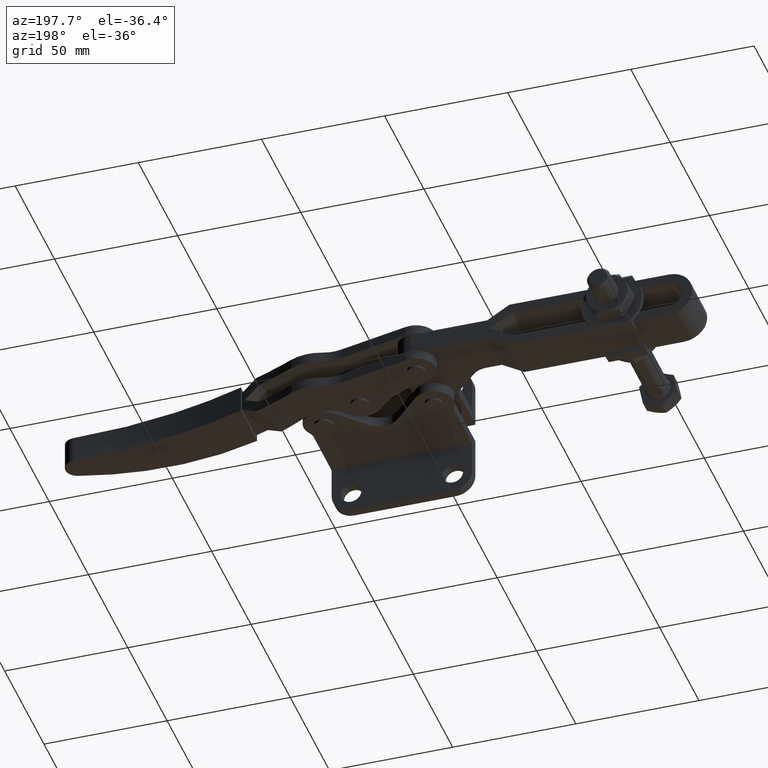
[diagram: clean part render]
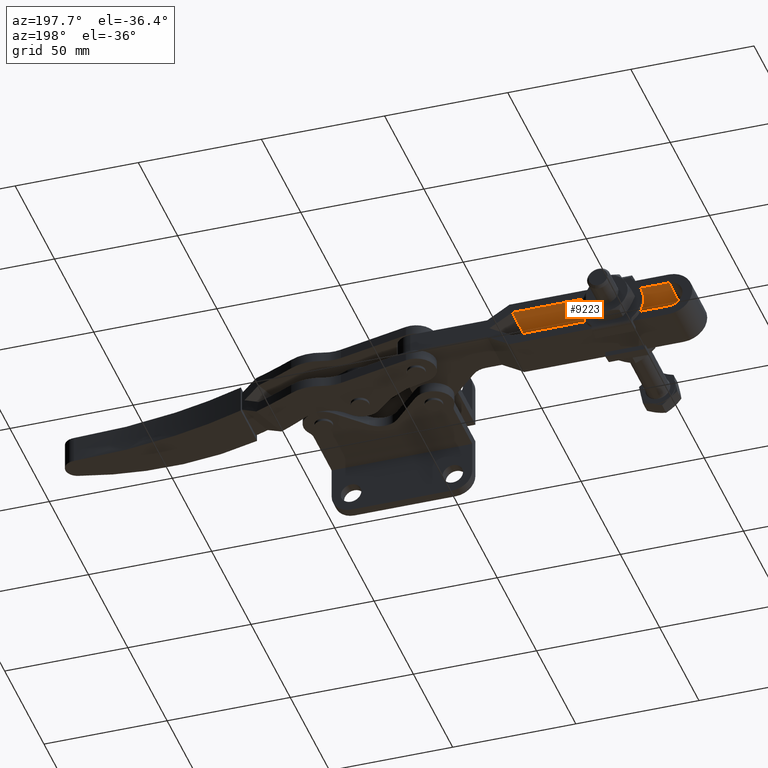
[diagram: same view with one face highlighted and labeled with its STEP entity id]
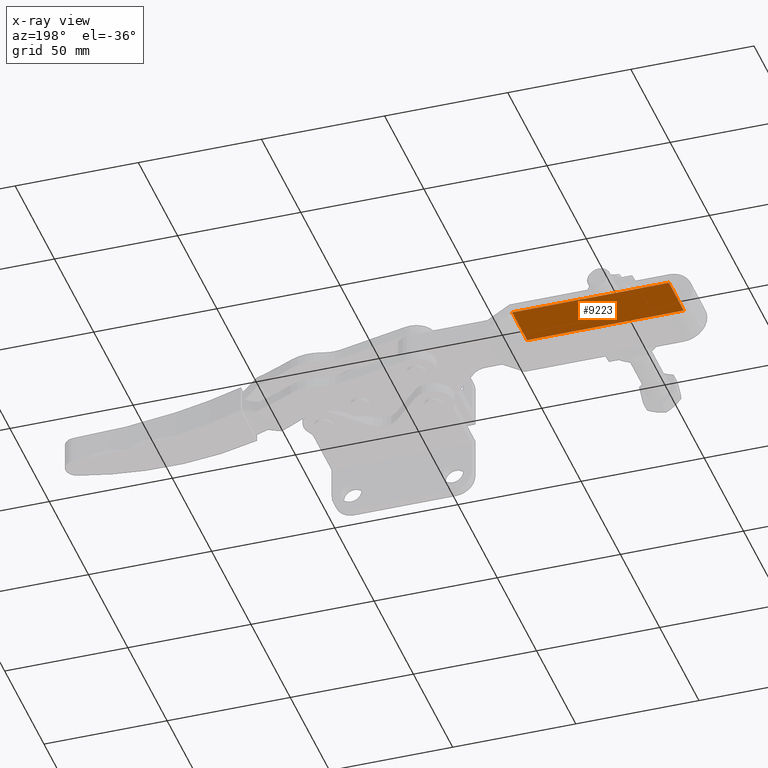
[diagram: x-ray of the same camera — body ghosted, the highlighted face saturated]
A machine part, auxiliary view. The second image highlights one B-rep face of the part: STEP entity #9223.
The next image is the same camera in x-ray: the body ghosted, the highlighted face saturated — about 0% of this face is hidden behind the body in this view.
In plain terms, the highlighted planar face has unit normal (0, 0, -1).
Its self-contained STEP definition (entity closure, byte-faithful):
#361 = VECTOR ( 'NONE', #3481, 1000.000000000000100 ) ;
#983 = CARTESIAN_POINT ( 'NONE',  ( -92.24993971434014400, 63.40008365123222900, 1.499999999996226600 ) ) ;
#1259 = CARTESIAN_POINT ( 'NONE',  ( -155.8999781513192300, 44.40021241559472300, 1.499999999993811800 ) ) ;
#1370 = CARTESIAN_POINT ( 'NONE',  ( -92.24997815145171400, 44.40008365127103200, 1.499999999996225700 ) ) ;
#1371 = VERTEX_POINT ( 'NONE', #1259 ) ;
#1411 = DIRECTION ( 'NONE',  ( 3.792184384588089500E-014, 2.488427435205167400E-017, -1.000000000000000000 ) ) ;
#1713 = ORIENTED_EDGE ( 'NONE', *, *, #6476, .T. ) ;
#1786 = ORIENTED_EDGE ( 'NONE', *, *, #9562, .F. ) ;
#2191 = ORIENTED_EDGE ( 'NONE', *, *, #6121, .F. ) ;
#2285 = EDGE_CURVE ( 'NONE', #1371, #5630, #4642, .T. ) ;
#3127 = DIRECTION ( 'NONE',  ( 2.023005871480253500E-006, 0.9999999999979536400, 2.496099046475832400E-017 ) ) ;
#3331 = FACE_OUTER_BOUND ( 'NONE', #4830, .T. ) ;
#3466 = VERTEX_POINT ( 'NONE', #1370 ) ;
#3481 = DIRECTION ( 'NONE',  ( -0.9999999999979536400, 2.023005870746017800E-006, -3.792184379546225800E-014 ) ) ;
#4083 = VECTOR ( 'NONE', #9810, 1000.000000000000100 ) ;
#4609 = AXIS2_PLACEMENT_3D ( 'NONE', #8976, #1411, #7343 ) ;
#4642 = LINE ( 'NONE', #9034, #9148 ) ;
#4705 = VERTEX_POINT ( 'NONE', #983 ) ;
#4830 = EDGE_LOOP ( 'NONE', ( #1786, #1713, #10878, #2191 ) ) ;
#5630 = VERTEX_POINT ( 'NONE', #5692 ) ;
#5692 = CARTESIAN_POINT ( 'NONE',  ( -155.8999397142076800, 63.40021241555594900, 1.499999999993812700 ) ) ;
#5845 = VECTOR ( 'NONE', #7003, 1000.000000000000100 ) ;
#6018 = CARTESIAN_POINT ( 'NONE',  ( -155.8999781513192600, 44.40021241559470900, 1.499999999993811800 ) ) ;
#6121 = EDGE_CURVE ( 'NONE', #4705, #5630, #10826, .T. ) ;
#6476 = EDGE_CURVE ( 'NONE', #3466, #1371, #9090, .T. ) ;
#7003 = DIRECTION ( 'NONE',  ( 2.023005871480253500E-006, 0.9999999999979536400, 2.496099046475832400E-017 ) ) ;
#7343 = DIRECTION ( 'NONE',  ( 2.023005871480253500E-006, 0.9999999999979536400, 2.496099046475832400E-017 ) ) ;
#8051 = CARTESIAN_POINT ( 'NONE',  ( -155.8999397142076800, 63.40021241555594900, 1.499999999993812700 ) ) ;
#8078 = LINE ( 'NONE', #10343, #5845 ) ;
#8976 = CARTESIAN_POINT ( 'NONE',  ( -155.9000151723266800, 26.10021241563227800, 1.499999999993811800 ) ) ;
#9034 = CARTESIAN_POINT ( 'NONE',  ( -155.9000151723266800, 26.10021241563227800, 1.499999999993811800 ) ) ;
#9090 = LINE ( 'NONE', #6018, #361 ) ;
#9148 = VECTOR ( 'NONE', #3127, 1000.000000000000100 ) ;
#9223 = ADVANCED_FACE ( 'NONE', ( #3331 ), #10692, .T. ) ;
#9562 = EDGE_CURVE ( 'NONE', #3466, #4705, #8078, .T. ) ;
#9810 = DIRECTION ( 'NONE',  ( -0.9999999999979536400, 2.023005871480253500E-006, -3.792184379546225800E-014 ) ) ;
#10343 = CARTESIAN_POINT ( 'NONE',  ( -92.25001517245914300, 26.10008365130855900, 1.499999999996225700 ) ) ;
#10692 = PLANE ( 'NONE',  #4609 ) ;
#10826 = LINE ( 'NONE', #8051, #4083 ) ;
#10878 = ORIENTED_EDGE ( 'NONE', *, *, #2285, .T. ) ;